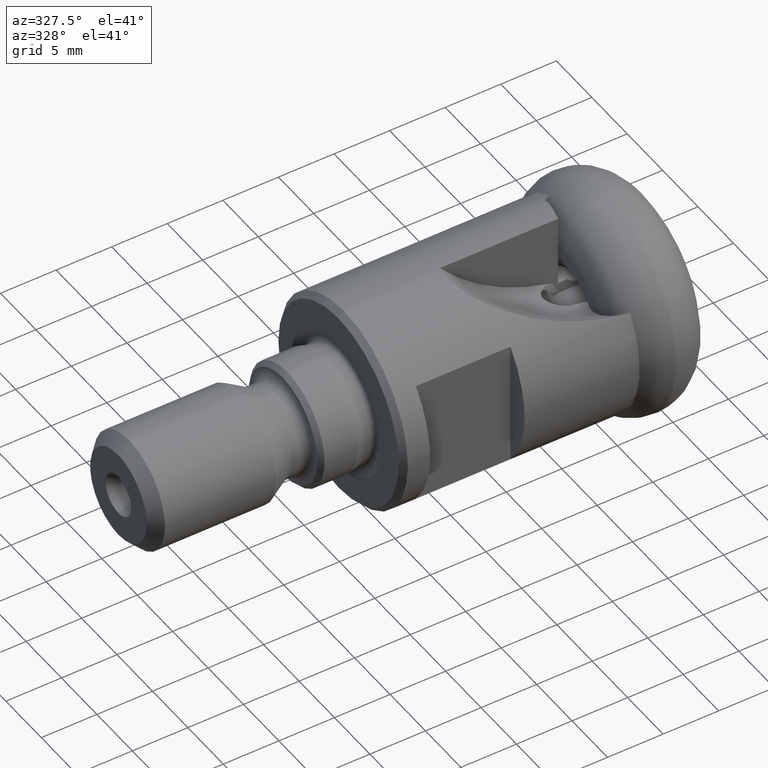
[diagram: clean part render]
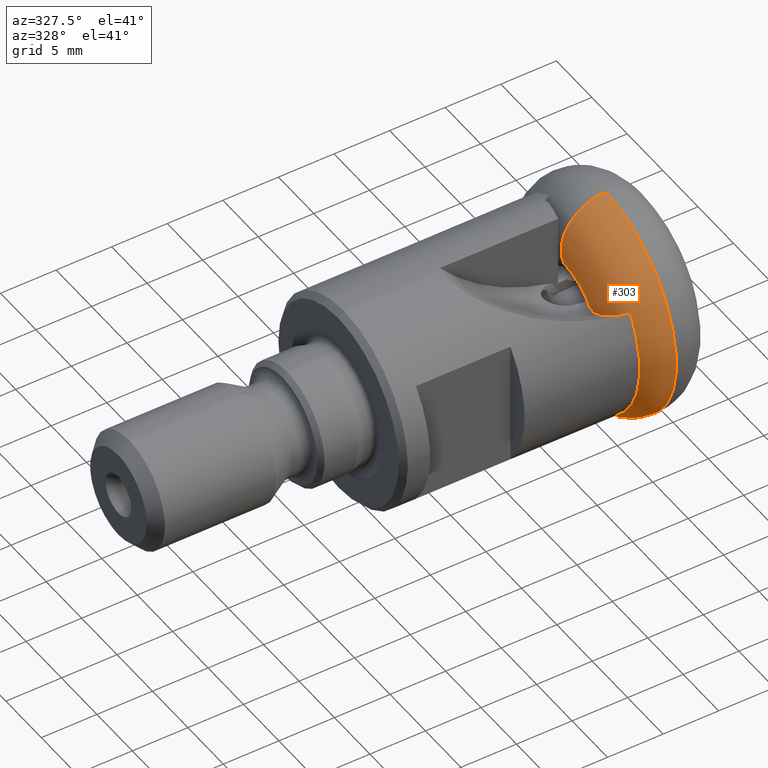
[diagram: same view with one face highlighted and labeled with its STEP entity id]
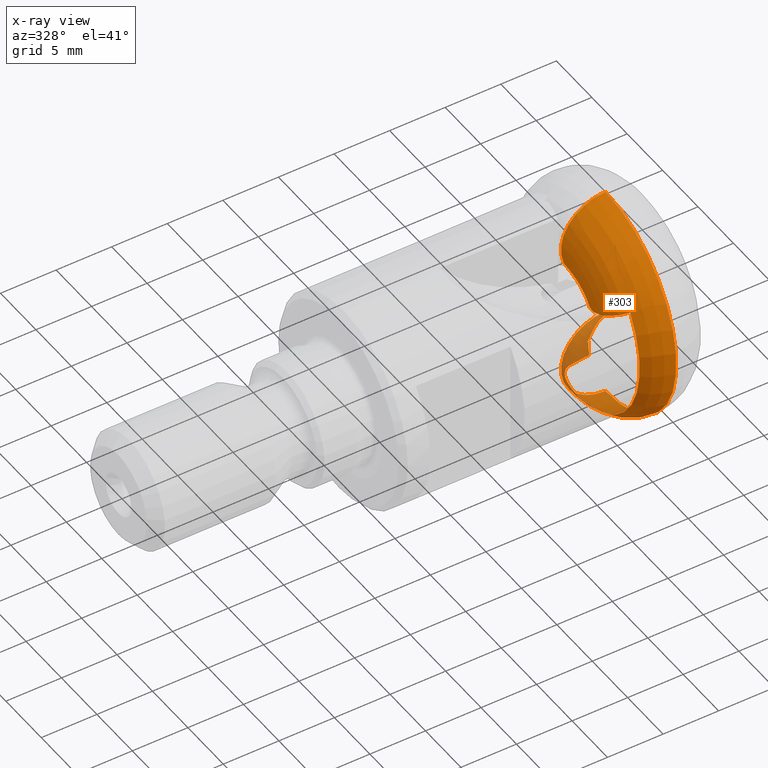
[diagram: x-ray of the same camera — body ghosted, the highlighted face saturated]
A machine part, auxiliary view. The second image highlights one B-rep face of the part: STEP entity #303.
The next image is the same camera in x-ray: the body ghosted, the highlighted face saturated — about 11% of this face is hidden behind the body in this view.
In plain terms, the highlighted toroidal blend (fillet) surface has major radius 6.0061 mm and minor (blend) radius 4 mm.
Its self-contained STEP definition (entity closure, byte-faithful):
#11 = CARTESIAN_POINT ( 'NONE',  ( -4.603509297783234400, -1.042792416153533600, -2.141895349059656600 ) ) ;
#21 = EDGE_CURVE ( 'NONE', #1675, #1994, #1644, .T. ) ;
#25 = CARTESIAN_POINT ( 'NONE',  ( -6.213873024179940300, -3.261529383115259000, -7.558852786885796400 ) ) ;
#38 = CARTESIAN_POINT ( 'NONE',  ( -5.643579261959070300, -1.772917347186934800, -2.548999999998849300 ) ) ;
#67 = CARTESIAN_POINT ( 'NONE',  ( -5.643579261959070300, -1.772917347186934800, -2.548999999998849300 ) ) ;
#70 = B_SPLINE_CURVE_WITH_KNOTS ( 'NONE', 3,
 ( #301, #1114, #575, #38 ),
 .UNSPECIFIED., .F., .F.,
 ( 4, 4 ),
 ( 2.897405141112877000E-007, 0.0001470738663674777100 ),
 .UNSPECIFIED. ) ;
#73 = CARTESIAN_POINT ( 'NONE',  ( -6.895958058695365300, -4.922600266540199800, 3.268091994077763300 ) ) ;
#75 = CARTESIAN_POINT ( 'NONE',  ( -6.323242238695459400, -3.022583589500726900, -2.548999999999999900 ) ) ;
#76 = CARTESIAN_POINT ( 'NONE',  ( -6.270085793851490200, -3.179999999999999700, -7.498410064105246200 ) ) ;
#82 = CARTESIAN_POINT ( 'NONE',  ( -6.002372270353825800, -3.505740115304898800, -7.765505715321410200 ) ) ;
#84 = CARTESIAN_POINT ( 'NONE',  ( -4.893567078971266900, -1.272895529959040800, -2.202834449809912600 ) ) ;
#85 = CARTESIAN_POINT ( 'NONE',  ( -5.625993947866780000, -1.743693861255925000, -2.548999999999999500 ) ) ;
#86 = ORIENTED_EDGE ( 'NONE', *, *, #2910, .T. ) ;
#87 = DIRECTION ( 'NONE',  ( -0.0000000000000000000, -1.000000000000000000, -0.0000000000000000000 ) ) ;
#100 = CARTESIAN_POINT ( 'NONE',  ( -5.135143240116677900, -1.453499209566692500, -2.266473028380471700 ) ) ;
#102 = CARTESIAN_POINT ( 'NONE',  ( -6.894582669028475100, -5.154817068230751300, 3.366883932621564900 ) ) ;
#109 = CARTESIAN_POINT ( 'NONE',  ( -6.346000000000000100, 0.0000000000000000000, 2.811524724740848300E-016 ) ) ;
#111 = CARTESIAN_POINT ( 'NONE',  ( -6.346000000000024100, -2.889999999999852200, -7.480815877097996700 ) ) ;
#115 = EDGE_CURVE ( 'NONE', #3064, #2354, #70, .T. ) ;
#116 = CARTESIAN_POINT ( 'NONE',  ( -5.986248667011492900, -2.699999999999984200, 2.184518061806823000 ) ) ;
#118 = CARTESIAN_POINT ( 'NONE',  ( -3.154431420121365900, -1.282061001861915200, 1.542927206851586900 ) ) ;
#119 = CARTESIAN_POINT ( 'NONE',  ( -6.331322856967054800, -3.180000000000001000, -7.389663918727908500 ) ) ;
#143 = DIRECTION ( 'NONE',  ( 0.0000000000000000000, 0.0000000000000000000, -1.000000000000000000 ) ) ;
#178 = CARTESIAN_POINT ( 'NONE',  ( -6.356134762775350400, -2.673395228902626400, -2.988803942460746200 ) ) ;
#219 = ORIENTED_EDGE ( 'NONE', *, *, #1084, .T. ) ;
#232 = AXIS2_PLACEMENT_3D ( 'NONE', #3455, #1281, #1841 ) ;
#235 = CIRCLE ( 'NONE', #801, 10.00606699243520300 ) ;
#253 = CARTESIAN_POINT ( 'NONE',  ( -6.763467236018782600, -1.003663793245313900, -6.949616754358655300 ) ) ;
#256 = CARTESIAN_POINT ( 'NONE',  ( -6.356134762775350400, -2.673395228902626400, -2.988803942460746200 ) ) ;
#273 = CARTESIAN_POINT ( 'NONE',  ( -6.825579444117742000, -0.7691310825070972700, -5.230784852149446900 ) ) ;
#280 = DIRECTION ( 'NONE',  ( 0.0000000000000000000, 0.0000000000000000000, 1.000000000000000000 ) ) ;
#287 = CARTESIAN_POINT ( 'NONE',  ( -6.769154663874563700, -0.9821883391764494300, -4.919590034926982500 ) ) ;
#296 = CARTESIAN_POINT ( 'NONE',  ( -5.542387997176409600, -3.721998749473739700, -8.194310545062091200 ) ) ;
#301 = CARTESIAN_POINT ( 'NONE',  ( -5.538133524848637600, -1.747194496384530700, -2.448999999999999800 ) ) ;
#303 = ADVANCED_FACE ( 'NONE', ( #768 ), #3157, .T. ) ;
#307 = CARTESIAN_POINT ( 'NONE',  ( -6.396659331596516100, -2.431670156709899300, -3.283229904618173200 ) ) ;
#315 = DIRECTION ( 'NONE',  ( 1.000000000000000000, -0.0000000000000000000, -0.0000000000000000000 ) ) ;
#336 = AXIS2_PLACEMENT_3D ( 'NONE', #412, #422, #2370 ) ;
#354 = CARTESIAN_POINT ( 'NONE',  ( -5.643579261959070300, -1.772917347186934800, -2.548999999998849300 ) ) ;
#359 = B_SPLINE_CURVE_WITH_KNOTS ( 'NONE', 3,
 ( #3522, #2682, #307, #1704 ),
 .UNSPECIFIED., .F., .F.,
 ( 4, 4 ),
 ( 0.0001046657921344109100, 0.0006791813619842846200 ),
 .UNSPECIFIED. ) ;
#362 = VERTEX_POINT ( 'NONE', #2931 ) ;
#405 = CARTESIAN_POINT ( 'NONE',  ( -5.648653744698265200, -2.699999999999989500, 1.542927206842828400 ) ) ;
#409 = ORIENTED_EDGE ( 'NONE', *, *, #115, .T. ) ;
#412 = CARTESIAN_POINT ( 'NONE',  ( -2.889773221862426100, 0.0000000000000000000, 0.0000000000000000000 ) ) ;
#417 = CARTESIAN_POINT ( 'NONE',  ( -5.648653744698265200, -2.699999999999989500, 1.542927206842828400 ) ) ;
#422 = DIRECTION ( 'NONE',  ( 1.000000000000000000, -0.0000000000000000000, -0.0000000000000000000 ) ) ;
#461 = DIRECTION ( 'NONE',  ( 0.0000000000000000000, 1.000000000000000000, -1.224646799147353200E-016 ) ) ;
#463 = EDGE_LOOP ( 'NONE', ( #1598, #1462, #1915, #1721, #3428, #3252, #2245, #2920, #2018, #1395, #554, #1555, #3332, #1288, #3191, #3557, #487, #694, #409, #86, #734, #2543, #219, #2086 ) ) ;
#487 = ORIENTED_EDGE ( 'NONE', *, *, #1853, .T. ) ;
#554 = ORIENTED_EDGE ( 'NONE', *, *, #2439, .T. ) ;
#563 = CARTESIAN_POINT ( 'NONE',  ( -2.983230056998686900, -0.3873569697407685500, -1.968313835782105500 ) ) ;
#573 = CARTESIAN_POINT ( 'NONE',  ( -6.842994438328171100, -0.7033729018744803200, -5.340745075719212300 ) ) ;
#575 = CARTESIAN_POINT ( 'NONE',  ( -5.608794775724339500, -1.762412228868883300, -2.516087339532362400 ) ) ;
#615 = CARTESIAN_POINT ( 'NONE',  ( -2.889773221862426600, 2.456723521160928800E-016, 2.006066992435202600 ) ) ;
#617 = CARTESIAN_POINT ( 'NONE',  ( -6.254135099086801700, -3.180000000000000200, -7.525337004113690200 ) ) ;
#619 = VERTEX_POINT ( 'NONE', #296 ) ;
#641 = CARTESIAN_POINT ( 'NONE',  ( -5.637719007539813800, -1.763175370625978300, -2.548999999999999500 ) ) ;
#661 = CARTESIAN_POINT ( 'NONE',  ( -6.336934442275953000, -3.052716420390967100, -2.548999999999999500 ) ) ;
#669 = VERTEX_POINT ( 'NONE', #1701 ) ;
#686 = CARTESIAN_POINT ( 'NONE',  ( -6.303316560216665600, -3.062063188268895800, -2.449000000015360900 ) ) ;
#694 = ORIENTED_EDGE ( 'NONE', *, *, #2552, .T. ) ;
#695 = EDGE_CURVE ( 'NONE', #3181, #3526, #2681, .T. ) ;
#706 = EDGE_CURVE ( 'NONE', #1530, #2999, #3546, .T. ) ;
#717 = VERTEX_POINT ( 'NONE', #1479 ) ;
#734 = ORIENTED_EDGE ( 'NONE', *, *, #21, .T. ) ;
#762 = CARTESIAN_POINT ( 'NONE',  ( -5.538133524848637600, -1.747194496384530700, -2.448999999999999800 ) ) ;
#766 = EDGE_CURVE ( 'NONE', #362, #2276, #235, .T. ) ;
#768 = FACE_OUTER_BOUND ( 'NONE', #463, .T. ) ;
#801 = AXIS2_PLACEMENT_3D ( 'NONE', #1829, #1547, #143 ) ;
#810 = CARTESIAN_POINT ( 'NONE',  ( -6.419641472283506900, -2.301933342155764600, -3.422452676421251700 ) ) ;
#831 = CARTESIAN_POINT ( 'NONE',  ( -6.864147192351761200, -0.6235011199402875600, -6.443200118788370300 ) ) ;
#833 = CARTESIAN_POINT ( 'NONE',  ( -6.346000000000001900, -2.889999999999993900, -2.754608531963769600 ) ) ;
#850 = VERTEX_POINT ( 'NONE', #405 ) ;
#864 = CARTESIAN_POINT ( 'NONE',  ( -5.542387997176409600, -3.721998749473739700, -8.194310545062091200 ) ) ;
#896 = DIRECTION ( 'NONE',  ( 0.0000000000000000000, 0.0000000000000000000, -1.000000000000000000 ) ) ;
#897 = CARTESIAN_POINT ( 'NONE',  ( -6.346000000000000100, -3.072876041165270200, -2.548999999999998600 ) ) ;
#901 = B_SPLINE_CURVE_WITH_KNOTS ( 'NONE', 3,
 ( #256, #2749, #2474, #833 ),
 .UNSPECIFIED., .F., .F.,
 ( 4, 4 ),
 ( 0.001553292781721838300, 0.001871611806865892300 ),
 .UNSPECIFIED. ) ;
#906 = CARTESIAN_POINT ( 'NONE',  ( -5.542387997176403400, 0.0000000000000000000, 0.0000000000000000000 ) ) ;
#909 = CARTESIAN_POINT ( 'NONE',  ( -6.684788974597934100, -3.774825834092615700, 2.832806490264450500 ) ) ;
#919 = CARTESIAN_POINT ( 'NONE',  ( -6.165954720608172400, -3.331464276652908600, -7.605132229520170200 ) ) ;
#924 = CARTESIAN_POINT ( 'NONE',  ( -5.901438646576383300, -7.373873266217821700, 4.522651767028374800 ) ) ;
#933 = CARTESIAN_POINT ( 'NONE',  ( -6.308709983660425500, -3.046392434951798600, -2.482730127048047300 ) ) ;
#938 = CARTESIAN_POINT ( 'NONE',  ( -6.845464330945032000, -5.609060505857744500, 3.571121894341325700 ) ) ;
#952 = CARTESIAN_POINT ( 'NONE',  ( -5.377879381935004600, -1.604832500647269000, -2.380149082565982300 ) ) ;
#956 = CARTESIAN_POINT ( 'NONE',  ( -6.301340854896256600, -3.180000000000000200, -7.444294604848722400 ) ) ;
#969 = CARTESIAN_POINT ( 'NONE',  ( -5.732355297912537400, -2.699999999999988200, 1.703622830699245800 ) ) ;
#997 = CARTESIAN_POINT ( 'NONE',  ( -5.818021669774665800, -2.699999999999987700, 1.863478869996044500 ) ) ;
#1012 = CARTESIAN_POINT ( 'NONE',  ( -4.861337407252191800, -1.990982120507491600, 1.542927206851591100 ) ) ;
#1017 = DIRECTION ( 'NONE',  ( -1.081546298157017400E-016, 0.0000000000000000000, -1.000000000000000000 ) ) ;
#1018 = CARTESIAN_POINT ( 'NONE',  ( -6.195128391188518400, -2.835269360427600500, -2.448999999999999000 ) ) ;
#1049 = VERTEX_POINT ( 'NONE', #3040 ) ;
#1051 = CIRCLE ( 'NONE', #232, 2.006066992435202600 ) ;
#1084 = EDGE_CURVE ( 'NONE', #717, #2847, #1051, .T. ) ;
#1096 = CARTESIAN_POINT ( 'NONE',  ( -3.622999146081977300, -0.5207781824417300200, -2.003648293402168400 ) ) ;
#1114 = CARTESIAN_POINT ( 'NONE',  ( -5.573625464894332600, -1.753845473977936100, -2.482772785042608900 ) ) ;
#1126 = CIRCLE ( 'NONE', #3492, 8.019645016273553800 ) ;
#1135 = CARTESIAN_POINT ( 'NONE',  ( -6.345999999999998300, -2.580000000000009400, -7.593306670156372300 ) ) ;
#1136 = CARTESIAN_POINT ( 'NONE',  ( -6.870861803619620300, -0.5981470707058017500, -5.570944695387972900 ) ) ;
#1148 = AXIS2_PLACEMENT_3D ( 'NONE', #906, #315, #1419 ) ;
#1158 = CARTESIAN_POINT ( 'NONE',  ( -2.889773221862426100, 0.0000000000000000000, -10.00606699243520300 ) ) ;
#1167 = EDGE_CURVE ( 'NONE', #2999, #3255, #1126, .T. ) ;
#1183 = CARTESIAN_POINT ( 'NONE',  ( -5.542387997176403400, -7.667636033559396000, 4.712468318923904500 ) ) ;
#1195 = CARTESIAN_POINT ( 'NONE',  ( -2.889773221862426600, 0.0000000000000000000, 0.0000000000000000000 ) ) ;
#1211 = CARTESIAN_POINT ( 'NONE',  ( -5.648653744698265200, -2.699999999999989500, 1.542927206842828400 ) ) ;
#1215 = AXIS2_PLACEMENT_3D ( 'NONE', #3093, #1436, #280 ) ;
#1223 = CARTESIAN_POINT ( 'NONE',  ( -6.339636942035376400, -6.854472455188901100, 4.213148102248307000 ) ) ;
#1225 = CARTESIAN_POINT ( 'NONE',  ( -6.341478402435538600, -3.062792238044609300, -2.548999999999999500 ) ) ;
#1229 = B_SPLINE_CURVE_WITH_KNOTS ( 'NONE', 3,
 ( #417, #1280, #1514, #1012, #1562, #2365, #1799, #2653, #118, #2378 ),
 .UNSPECIFIED., .F., .F.,
 ( 4, 2, 2, 2, 4 ),
 ( 0.02555007765051717200, 0.02634049190884002500, 0.02713090616716288100, 0.02792132042548573300, 0.02871173468380858900 ),
 .UNSPECIFIED. ) ;
#1241 = DIRECTION ( 'NONE',  ( 1.000000000000000000, -0.0000000000000000000, -0.0000000000000000000 ) ) ;
#1253 = CARTESIAN_POINT ( 'NONE',  ( -6.254135099086801700, -3.180000000000000200, -7.525337004113690200 ) ) ;
#1275 = VERTEX_POINT ( 'NONE', #2488 ) ;
#1280 = CARTESIAN_POINT ( 'NONE',  ( -5.468870694061642700, -2.502757294313889600, 1.542927206851595100 ) ) ;
#1281 = DIRECTION ( 'NONE',  ( 1.000000000000000000, -0.0000000000000000000, -0.0000000000000000000 ) ) ;
#1283 = CARTESIAN_POINT ( 'NONE',  ( -4.893567078971266900, -1.272895529959040800, -2.202834449809912600 ) ) ;
#1288 = ORIENTED_EDGE ( 'NONE', *, *, #1656, .T. ) ;
#1393 = CARTESIAN_POINT ( 'NONE',  ( -6.318824520930351500, -3.012949012891997600, -2.548999999999999500 ) ) ;
#1395 = ORIENTED_EDGE ( 'NONE', *, *, #1167, .T. ) ;
#1396 = CARTESIAN_POINT ( 'NONE',  ( -6.637235382700566800, -1.480309200748134400, -4.360908534697332900 ) ) ;
#1399 = B_SPLINE_CURVE_WITH_KNOTS ( 'NONE', 3,
 ( #2712, #1018, #3517, #2436, #3232, #762 ),
 .UNSPECIFIED., .F., .F.,
 ( 4, 2, 4 ),
 ( 0.04961655181294635800, 0.05038426498573671300, 0.05115197815852706700 ),
 .UNSPECIFIED. ) ;
#1405 = CARTESIAN_POINT ( 'NONE',  ( -6.812867770186047200, -0.8171297519549922700, -6.772836896039949700 ) ) ;
#1419 = DIRECTION ( 'NONE',  ( 0.0000000000000000000, 0.0000000000000000000, -1.000000000000000000 ) ) ;
#1423 = EDGE_CURVE ( 'NONE', #1049, #3116, #2638, .T. ) ;
#1436 = DIRECTION ( 'NONE',  ( -1.000000000000000000, -0.0000000000000000000, 8.134665070374431000E-017 ) ) ;
#1447 = EDGE_CURVE ( 'NONE', #850, #3526, #1229, .T. ) ;
#1451 = AXIS2_PLACEMENT_3D ( 'NONE', #1195, #1241, #3180 ) ;
#1462 = ORIENTED_EDGE ( 'NONE', *, *, #2609, .F. ) ;
#1476 = CARTESIAN_POINT ( 'NONE',  ( -6.399888828723436300, -3.117581566641968400, 2.623539921272852700 ) ) ;
#1479 = CARTESIAN_POINT ( 'NONE',  ( -2.889773221862426600, -0.3873569697407691100, -1.968313835782105900 ) ) ;
#1480 = CIRCLE ( 'NONE', #1148, 8.999999999999998200 ) ;
#1491 = CARTESIAN_POINT ( 'NONE',  ( -2.889773221862426100, 0.0000000000000000000, -6.006066992435203000 ) ) ;
#1514 = CARTESIAN_POINT ( 'NONE',  ( -5.273696907393912200, -2.320129399740525700, 1.542927206851594000 ) ) ;
#1516 = DIRECTION ( 'NONE',  ( 1.000000000000000000, 0.0000000000000000000, -8.134665070374431000E-017 ) ) ;
#1530 = VERTEX_POINT ( 'NONE', #2459 ) ;
#1547 = DIRECTION ( 'NONE',  ( 1.000000000000000000, -0.0000000000000000000, -0.0000000000000000000 ) ) ;
#1555 = ORIENTED_EDGE ( 'NONE', *, *, #2188, .T. ) ;
#1562 = CARTESIAN_POINT ( 'NONE',  ( -4.643191281739551500, -1.843059503670850600, 1.542927206851590200 ) ) ;
#1598 = ORIENTED_EDGE ( 'NONE', *, *, #766, .F. ) ;
#1628 = CARTESIAN_POINT ( 'NONE',  ( -5.608396800632562900, -1.714476729601796200, -2.548999999999999500 ) ) ;
#1644 = B_SPLINE_CURVE_WITH_KNOTS ( 'NONE', 3,
 ( #1783, #2870, #952, #100, #1768, #84 ),
 .UNSPECIFIED., .F., .F.,
 ( 4, 2, 4 ),
 ( 3.184134176610177500E-007, 0.0004575513832478875800, 0.0009147843530781141400 ),
 .UNSPECIFIED. ) ;
#1650 = CARTESIAN_POINT ( 'NONE',  ( -2.889773221862426600, -0.3873569697407691100, -1.968313835782105900 ) ) ;
#1656 = EDGE_CURVE ( 'NONE', #3059, #3561, #901, .T. ) ;
#1670 = CARTESIAN_POINT ( 'NONE',  ( -3.797563562830164500, -0.5928302512012740800, -2.022730122434319700 ) ) ;
#1675 = VERTEX_POINT ( 'NONE', #1628 ) ;
#1693 = CARTESIAN_POINT ( 'NONE',  ( -6.876807575071509900, -0.5756961236420522500, -6.325759923457947100 ) ) ;
#1701 = CARTESIAN_POINT ( 'NONE',  ( -6.147766011967676500, -2.699999999999982000, 2.508424347973301900 ) ) ;
#1704 = CARTESIAN_POINT ( 'NONE',  ( -6.419641472283506900, -2.301933342155764600, -3.422452676421251700 ) ) ;
#1705 = B_SPLINE_CURVE_WITH_KNOTS ( 'NONE', 3,
 ( #1183, #1729, #924, #2299, #1223, #2610, #2863, #2321, #938, #102, #73, #3435, #1784, #909, #1770, #1476, #3124, #2012 ),
 .UNSPECIFIED., .F., .F.,
 ( 4, 2, 2, 2, 2, 2, 2, 2, 4 ),
 ( 0.0008365365392374196100, 0.001581372583500888400, 0.002326208627764357200, 0.003071044672027826000, 0.003815880716291294700, 0.004560716760554763500, 0.005305552804818232700, 0.006050388849081701100, 0.006795224893345169400 ),
 .UNSPECIFIED. ) ;
#1721 = ORIENTED_EDGE ( 'NONE', *, *, #1447, .F. ) ;
#1729 = CARTESIAN_POINT ( 'NONE',  ( -5.728348218686323700, -7.530002190173622300, 4.621748330309279700 ) ) ;
#1743 = EDGE_CURVE ( 'NONE', #2082, #619, #1480, .T. ) ;
#1762 = CARTESIAN_POINT ( 'NONE',  ( -6.346000000000024100, -2.889999999999852200, -7.480815877097996700 ) ) ;
#1763 = CARTESIAN_POINT ( 'NONE',  ( -5.819262224913141600, -3.637949641583902800, -7.942787965954624800 ) ) ;
#1768 = CARTESIAN_POINT ( 'NONE',  ( -5.012861782496802500, -1.367532131774710900, -2.227897428389036700 ) ) ;
#1770 = CARTESIAN_POINT ( 'NONE',  ( -6.601412707018771400, -3.551954613841663100, 2.758583174623612200 ) ) ;
#1783 = CARTESIAN_POINT ( 'NONE',  ( -5.608396800632562900, -1.714476729601796200, -2.548999999999999500 ) ) ;
#1784 = CARTESIAN_POINT ( 'NONE',  ( -6.812282301684545500, -4.233431291816967400, 2.996241276363415200 ) ) ;
#1785 = CARTESIAN_POINT ( 'NONE',  ( -2.889773221862426600, -1.282061001861915000, 1.542927206851586700 ) ) ;
#1799 = CARTESIAN_POINT ( 'NONE',  ( -3.931654106997043700, -1.477380745182972100, 1.542927206851587600 ) ) ;
#1829 = CARTESIAN_POINT ( 'NONE',  ( -2.889773221862426100, 0.0000000000000000000, 0.0000000000000000000 ) ) ;
#1841 = DIRECTION ( 'NONE',  ( 0.0000000000000000000, 0.0000000000000000000, -1.000000000000000000 ) ) ;
#1853 = EDGE_CURVE ( 'NONE', #3116, #3457, #2202, .T. ) ;
#1882 = CARTESIAN_POINT ( 'NONE',  ( -6.346000000000001900, -2.889999999999993900, -2.754608531963769600 ) ) ;
#1915 = ORIENTED_EDGE ( 'NONE', *, *, #695, .T. ) ;
#1932 = B_SPLINE_CURVE_WITH_KNOTS ( 'NONE', 3,
 ( #111, #2879, #2070, #3155 ),
 .UNSPECIFIED., .F., .F.,
 ( 4, 4 ),
 ( 0.003011328015638117300, 0.003339558748482044400 ),
 .UNSPECIFIED. ) ;
#1977 = CARTESIAN_POINT ( 'NONE',  ( -4.296479401978134900, -0.8390073453793484000, -2.087926157796113900 ) ) ;
#1994 = VERTEX_POINT ( 'NONE', #1283 ) ;
#2012 = CARTESIAN_POINT ( 'NONE',  ( -6.147766011967676500, -2.699999999999982000, 2.508424347973301900 ) ) ;
#2018 = ORIENTED_EDGE ( 'NONE', *, *, #706, .T. ) ;
#2019 = CARTESIAN_POINT ( 'NONE',  ( -5.608396800632562900, -1.714476729601796200, -2.548999999999999500 ) ) ;
#2061 = CARTESIAN_POINT ( 'NONE',  ( -6.303316560216665600, -3.062063188268895800, -2.449000000015360900 ) ) ;
#2070 = CARTESIAN_POINT ( 'NONE',  ( -6.360548647988009600, -2.673202893492571300, -7.535264570850164200 ) ) ;
#2078 = CARTESIAN_POINT ( 'NONE',  ( -6.346000000000001000, -3.179999999999999300, -7.362221552428400700 ) ) ;
#2082 = VERTEX_POINT ( 'NONE', #3256 ) ;
#2086 = ORIENTED_EDGE ( 'NONE', *, *, #3365, .T. ) ;
#2146 = CARTESIAN_POINT ( 'NONE',  ( -2.889773221862426100, 7.355310717750341100E-016, 6.006066992435203000 ) ) ;
#2188 = EDGE_CURVE ( 'NONE', #3134, #1275, #2359, .T. ) ;
#2202 = B_SPLINE_CURVE_WITH_KNOTS ( 'NONE', 3,
 ( #2622, #2360, #933, #2061 ),
 .UNSPECIFIED., .F., .F.,
 ( 4, 4 ),
 ( 0.002112315533147532200, 0.002224129901798075900 ),
 .UNSPECIFIED. ) ;
#2216 = EDGE_CURVE ( 'NONE', #1994, #717, #3230, .T. ) ;
#2230 = CARTESIAN_POINT ( 'NONE',  ( -3.078250078423594900, -0.3948504529671410500, -1.970298364030116400 ) ) ;
#2240 = CARTESIAN_POINT ( 'NONE',  ( -6.591960235914469600, -1.651265977681524200, -4.179019748480787800 ) ) ;
#2245 = ORIENTED_EDGE ( 'NONE', *, *, #1743, .T. ) ;
#2252 = AXIS2_PLACEMENT_3D ( 'NONE', #1491, #87, #896 ) ;
#2254 = CARTESIAN_POINT ( 'NONE',  ( -6.725722086220833300, -1.146187663677158000, -4.731557111772501000 ) ) ;
#2276 = VERTEX_POINT ( 'NONE', #1158 ) ;
#2299 = CARTESIAN_POINT ( 'NONE',  ( -6.206821460874113700, -7.035910304733962000, 4.318286790909156500 ) ) ;
#2309 = EDGE_CURVE ( 'NONE', #619, #1530, #2433, .T. ) ;
#2321 = CARTESIAN_POINT ( 'NONE',  ( -6.798411462220183700, -5.829410159369977000, 3.675699743095789600 ) ) ;
#2350 = CARTESIAN_POINT ( 'NONE',  ( -6.147766011967676500, -2.699999999999982000, 2.508424347973301900 ) ) ;
#2354 = VERTEX_POINT ( 'NONE', #67 ) ;
#2359 = B_SPLINE_CURVE_WITH_KNOTS ( 'NONE', 3,
 ( #3016, #3578, #3635, #2767, #3046, #253, #1405, #831, #1693, #3075, #3339, #2805, #1136, #573, #273, #287, #2254, #1396, #2240, #3625, #3325, #810 ),
 .UNSPECIFIED., .F., .F.,
 ( 4, 2, 2, 2, 2, 2, 2, 2, 2, 2, 4 ),
 ( 2.073819747548763300E-007, 0.0007601320511573270200, 0.001520056720339899800, 0.002279981389522472400, 0.002659943724113757400, 0.003039906058705042300, 0.003419868393296327800, 0.003799830727887612700, 0.004559755397070182700, 0.005319680066252752700, 0.006079604735435322600 ),
 .UNSPECIFIED. ) ;
#2360 = CARTESIAN_POINT ( 'NONE',  ( -6.313900590874346200, -3.030058377133002100, -2.516083400260230400 ) ) ;
#2365 = CARTESIAN_POINT ( 'NONE',  ( -4.178878735498449800, -1.586204069056403400, 1.542927206851588500 ) ) ;
#2370 = DIRECTION ( 'NONE',  ( 0.0000000000000000000, 0.0000000000000000000, -1.000000000000000000 ) ) ;
#2378 = CARTESIAN_POINT ( 'NONE',  ( -2.889773221862426600, -1.282061001861915000, 1.542927206851586700 ) ) ;
#2419 = DIRECTION ( 'NONE',  ( 0.0000000000000000000, 1.224646799147353200E-016, 1.000000000000000000 ) ) ;
#2433 = B_SPLINE_CURVE_WITH_KNOTS ( 'NONE', 3,
 ( #864, #2561, #1763, #82, #2586, #919, #25, #617 ),
 .UNSPECIFIED., .F., .F.,
 ( 4, 2, 2, 4 ),
 ( 0.001567298625625722000, 0.002135916487243917800, 0.002420225418053015200, 0.002704534348862112600 ),
 .UNSPECIFIED. ) ;
#2436 = CARTESIAN_POINT ( 'NONE',  ( -5.818111475314769800, -2.178368218474715500, -2.448999999999999400 ) ) ;
#2439 = EDGE_CURVE ( 'NONE', #3255, #3134, #1932, .T. ) ;
#2459 = CARTESIAN_POINT ( 'NONE',  ( -6.254135099086801700, -3.180000000000000200, -7.525337004113690200 ) ) ;
#2474 = CARTESIAN_POINT ( 'NONE',  ( -6.355456356820324600, -2.829419812880790800, -2.841691929830461000 ) ) ;
#2488 = CARTESIAN_POINT ( 'NONE',  ( -6.419641472283506900, -2.301933342155764600, -3.422452676421251700 ) ) ;
#2543 = ORIENTED_EDGE ( 'NONE', *, *, #2216, .T. ) ;
#2552 = EDGE_CURVE ( 'NONE', #3457, #3064, #1399, .T. ) ;
#2561 = CARTESIAN_POINT ( 'NONE',  ( -5.684001761106805400, -3.694829056402760200, -8.068845640739494800 ) ) ;
#2586 = CARTESIAN_POINT ( 'NONE',  ( -6.059594665175953100, -3.454293918909707700, -7.708975503201753700 ) ) ;
#2609 = EDGE_CURVE ( 'NONE', #3181, #362, #3353, .T. ) ;
#2610 = CARTESIAN_POINT ( 'NONE',  ( -6.565831135522423700, -6.465792460946080800, 3.998906780897392800 ) ) ;
#2622 = CARTESIAN_POINT ( 'NONE',  ( -6.318824520930351500, -3.012949012891997600, -2.548999999999999500 ) ) ;
#2629 = CARTESIAN_POINT ( 'NONE',  ( -6.327802302926834000, -3.032580575272775900, -2.548999999999999000 ) ) ;
#2638 = B_SPLINE_CURVE_WITH_KNOTS ( 'NONE', 3,
 ( #897, #1225, #661, #2629, #75, #3150 ),
 .UNSPECIFIED., .F., .F.,
 ( 4, 2, 4 ),
 ( 0.04860111643383552300, 0.04863286541173485200, 0.04866461438963417400 ),
 .UNSPECIFIED. ) ;
#2650 = CARTESIAN_POINT ( 'NONE',  ( -6.068863716780404300, -2.699999999999983700, 2.345677958290993900 ) ) ;
#2653 = CARTESIAN_POINT ( 'NONE',  ( -3.423179378039143700, -1.325490327231464400, 1.542927206851587400 ) ) ;
#2681 = CIRCLE ( 'NONE', #1451, 2.006066992435202600 ) ;
#2682 = CARTESIAN_POINT ( 'NONE',  ( -6.375407022137692600, -2.555762921563002400, -3.138925351970835100 ) ) ;
#2712 = CARTESIAN_POINT ( 'NONE',  ( -6.303316560216665600, -3.062063188268895800, -2.449000000015360900 ) ) ;
#2749 = CARTESIAN_POINT ( 'NONE',  ( -6.361397875219316800, -2.759094454823583000, -2.924411200652952600 ) ) ;
#2767 = CARTESIAN_POINT ( 'NONE',  ( -6.597093076521773000, -1.631884618392211100, -7.338987739900968400 ) ) ;
#2772 = EDGE_CURVE ( 'NONE', #3561, #1049, #3182, .T. ) ;
#2781 = CARTESIAN_POINT ( 'NONE',  ( -4.893567078971266900, -1.272895529959040800, -2.202834449809912600 ) ) ;
#2802 = B_SPLINE_CURVE_WITH_KNOTS ( 'NONE', 3,
 ( #1211, #969, #997, #116, #2650, #2350 ),
 .UNSPECIFIED., .F., .F.,
 ( 4, 2, 4 ),
 ( 0.0006260002038281759500, 0.001167978977007112900, 0.001709957750186050000 ),
 .UNSPECIFIED. ) ;
#2805 = CARTESIAN_POINT ( 'NONE',  ( -6.881524850110264600, -0.5578839199545966300, -5.693693964047025000 ) ) ;
#2847 = VERTEX_POINT ( 'NONE', #3345 ) ;
#2863 = CARTESIAN_POINT ( 'NONE',  ( -6.659278922433797400, -6.256896347226701800, 3.889065315024401200 ) ) ;
#2870 = CARTESIAN_POINT ( 'NONE',  ( -5.495241946445808900, -1.668925336680966700, -2.453284788831928200 ) ) ;
#2879 = CARTESIAN_POINT ( 'NONE',  ( -6.362926217002903500, -2.781565704109136400, -7.491560550873722400 ) ) ;
#2884 = EDGE_CURVE ( 'NONE', #2082, #669, #1705, .T. ) ;
#2910 = EDGE_CURVE ( 'NONE', #2354, #1675, #3566, .T. ) ;
#2920 = ORIENTED_EDGE ( 'NONE', *, *, #2309, .T. ) ;
#2931 = CARTESIAN_POINT ( 'NONE',  ( -2.889773221862426100, 1.225389791433975400E-015, 10.00606699243520300 ) ) ;
#2935 = CARTESIAN_POINT ( 'NONE',  ( -6.346000000000001000, -3.179999999999999300, -7.362221552428400700 ) ) ;
#2960 = AXIS2_PLACEMENT_3D ( 'NONE', #2146, #461, #2419 ) ;
#2962 = CARTESIAN_POINT ( 'NONE',  ( -5.538133524848637600, -1.747194496384530700, -2.448999999999999800 ) ) ;
#2994 = EDGE_CURVE ( 'NONE', #850, #669, #2802, .T. ) ;
#2999 = VERTEX_POINT ( 'NONE', #2935 ) ;
#3016 = CARTESIAN_POINT ( 'NONE',  ( -6.345999999999998300, -2.580000000000009400, -7.593306670156372300 ) ) ;
#3037 = CARTESIAN_POINT ( 'NONE',  ( -3.354434271839260400, -0.4436824916731475500, -1.983230742377073900 ) ) ;
#3040 = CARTESIAN_POINT ( 'NONE',  ( -6.346000000000000100, -3.072876041165270200, -2.548999999999998600 ) ) ;
#3046 = CARTESIAN_POINT ( 'NONE',  ( -6.656424941813707400, -1.407850348383632900, -7.230659223208218300 ) ) ;
#3059 = VERTEX_POINT ( 'NONE', #178 ) ;
#3064 = VERTEX_POINT ( 'NONE', #2962 ) ;
#3075 = CARTESIAN_POINT ( 'NONE',  ( -6.890697034721728900, -0.5232501919620208300, -6.076557411721967800 ) ) ;
#3084 = EDGE_CURVE ( 'NONE', #3059, #1275, #359, .T. ) ;
#3093 = CARTESIAN_POINT ( 'NONE',  ( -6.346000000000000100, 0.0000000000000000000, 2.811524724740848300E-016 ) ) ;
#3116 = VERTEX_POINT ( 'NONE', #1393 ) ;
#3124 = CARTESIAN_POINT ( 'NONE',  ( -6.280973556971916900, -2.905063732091251300, 2.562457432508690000 ) ) ;
#3134 = VERTEX_POINT ( 'NONE', #1135 ) ;
#3149 = CARTESIAN_POINT ( 'NONE',  ( -5.614262957730161900, -1.724215536484509100, -2.549000000000000400 ) ) ;
#3150 = CARTESIAN_POINT ( 'NONE',  ( -6.318824520930351500, -3.012949012891997600, -2.548999999999999500 ) ) ;
#3155 = CARTESIAN_POINT ( 'NONE',  ( -6.345999999999998300, -2.580000000000009400, -7.593306670156372300 ) ) ;
#3157 = TOROIDAL_SURFACE ( 'NONE', #336, 6.006066992435203000, 4.000000000000000000 ) ;
#3180 = DIRECTION ( 'NONE',  ( 0.0000000000000000000, 0.0000000000000000000, -1.000000000000000000 ) ) ;
#3181 = VERTEX_POINT ( 'NONE', #615 ) ;
#3182 = CIRCLE ( 'NONE', #1215, 3.992488968596851000 ) ;
#3191 = ORIENTED_EDGE ( 'NONE', *, *, #2772, .T. ) ;
#3230 = B_SPLINE_CURVE_WITH_KNOTS ( 'NONE', 3,
 ( #2781, #11, #1977, #1670, #1096, #3037, #3313, #2230, #563, #1650 ),
 .UNSPECIFIED., .F., .F.,
 ( 4, 2, 2, 2, 4 ),
 ( 2.565535956391745300E-007, 0.001116470566861212100, 0.001674577573493998600, 0.001953631076810391800, 0.002232684580126785100 ),
 .UNSPECIFIED. ) ;
#3232 = CARTESIAN_POINT ( 'NONE',  ( -5.678713585372227300, -1.961041435230758800, -2.448999999999999800 ) ) ;
#3252 = ORIENTED_EDGE ( 'NONE', *, *, #2884, .F. ) ;
#3255 = VERTEX_POINT ( 'NONE', #1762 ) ;
#3256 = CARTESIAN_POINT ( 'NONE',  ( -5.542387997176403400, -7.667636033559396000, 4.712468318923904500 ) ) ;
#3313 = CARTESIAN_POINT ( 'NONE',  ( -3.263535036275838400, -0.4230941370003197300, -1.977778248497525900 ) ) ;
#3325 = CARTESIAN_POINT ( 'NONE',  ( -6.460537221703877000, -2.147512959065391000, -3.618779824974557500 ) ) ;
#3332 = ORIENTED_EDGE ( 'NONE', *, *, #3084, .F. ) ;
#3339 = CARTESIAN_POINT ( 'NONE',  ( -6.891527528397488400, -0.5201142877816857800, -5.946351631618683500 ) ) ;
#3345 = CARTESIAN_POINT ( 'NONE',  ( -2.889773221862426600, 0.0000000000000000000, -2.006066992435202600 ) ) ;
#3353 = CIRCLE ( 'NONE', #2960, 4.000000000000000000 ) ;
#3365 = EDGE_CURVE ( 'NONE', #2847, #2276, #3370, .T. ) ;
#3370 = CIRCLE ( 'NONE', #2252, 4.000000000000000000 ) ;
#3428 = ORIENTED_EDGE ( 'NONE', *, *, #2994, .T. ) ;
#3435 = CARTESIAN_POINT ( 'NONE',  ( -6.854679673353754900, -4.462982096682431200, 3.083263231939025000 ) ) ;
#3455 = CARTESIAN_POINT ( 'NONE',  ( -2.889773221862426600, 0.0000000000000000000, 0.0000000000000000000 ) ) ;
#3457 = VERTEX_POINT ( 'NONE', #686 ) ;
#3492 = AXIS2_PLACEMENT_3D ( 'NONE', #109, #1516, #1017 ) ;
#3517 = CARTESIAN_POINT ( 'NONE',  ( -6.075099422413433800, -2.613776071283180300, -2.449000000000000300 ) ) ;
#3522 = CARTESIAN_POINT ( 'NONE',  ( -6.356134762775350400, -2.673395228902626400, -2.988803942460746200 ) ) ;
#3526 = VERTEX_POINT ( 'NONE', #1785 ) ;
#3546 = B_SPLINE_CURVE_WITH_KNOTS ( 'NONE', 3,
 ( #1253, #76, #956, #119, #2078 ),
 .UNSPECIFIED., .F., .F.,
 ( 4, 1, 4 ),
 ( 0.04236455912979510800, 0.04245026764495152300, 0.04253597616010793700 ),
 .UNSPECIFIED. ) ;
#3557 = ORIENTED_EDGE ( 'NONE', *, *, #1423, .T. ) ;
#3561 = VERTEX_POINT ( 'NONE', #1882 ) ;
#3566 = B_SPLINE_CURVE_WITH_KNOTS ( 'NONE', 3,
 ( #354, #641, #85, #3149, #2019 ),
 .UNSPECIFIED., .F., .F.,
 ( 4, 1, 4 ),
 ( 4.779883726537876500E-005, 8.186458503834840100E-005, 0.0001159303328113180500 ),
 .UNSPECIFIED. ) ;
#3578 = CARTESIAN_POINT ( 'NONE',  ( -6.410696263714188000, -2.335710019528733000, -7.559026221792859900 ) ) ;
#3625 = CARTESIAN_POINT ( 'NONE',  ( -6.503640797329651100, -1.984755930400180100, -3.807843009937142300 ) ) ;
#3635 = CARTESIAN_POINT ( 'NONE',  ( -6.473991524601291100, -2.096710158356784400, -7.503399701868237200 ) ) ;